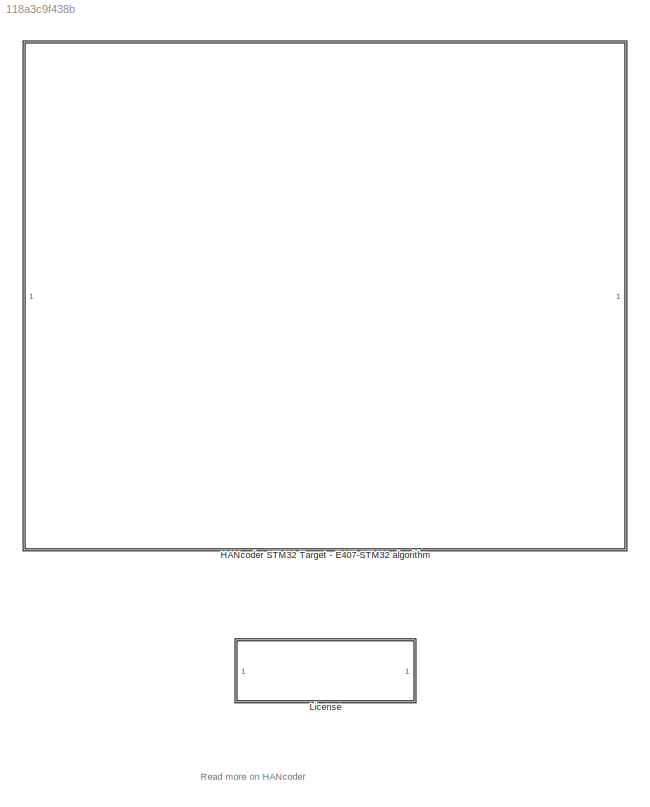
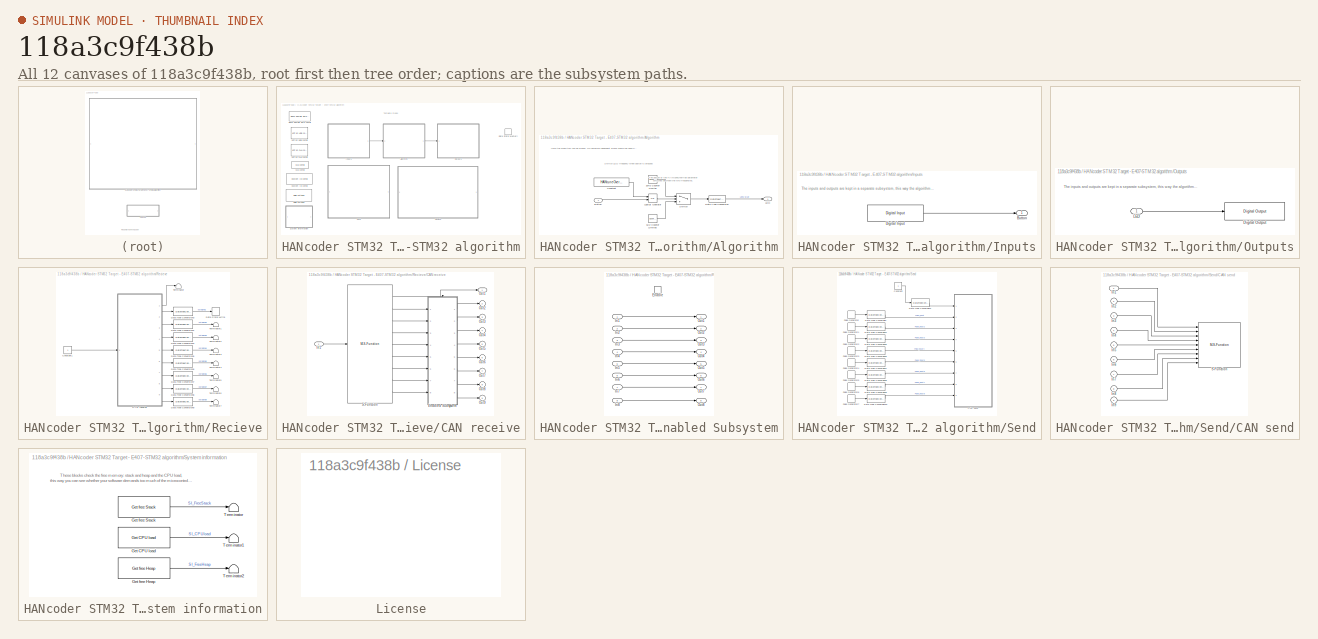
[diagram: thumbnail index - all 12 canvases of the model, root first then tree order]
MODEL slx_118a3c9f438b
KIND model
CONFIG AbsTol = auto
CONFIG EnableMultiTasking = off
CONFIG FixedStep = 0.01
CONFIG MaxStep = auto
CONFIG MinStep = auto
CONFIG PreLoadFcn = librarySetup\neval([bdroot,'_startup']) %Calling [modelName]_startup.m
CONFIG RelTol = 1e-3
CONFIG SampleTimeConstraint = Unconstrained
CONFIG Solver = FixedStepDiscrete
CONFIG SolverName = FixedStepDiscrete
CONFIG StartTime = 0.0
CONFIG StopTime = 1
BLOCK [SubSystem] HANcoder STM32 Target - E407-STM32 algorithm
  CopyFcn = HANcoderChecks('Copy');
  MoveFcn = HANcoderChecks('MoveE407');
  NameChangeFcn = HANcoderChecks('NameChangeE407');
  Ports = []
  RequestExecContextInheritance = off
BLOCK [SubSystem] HANcoder STM32 Target - E407-STM32 algorithm/Algorithm
  Ports = [1, 1]
  RequestExecContextInheritance = off
BLOCK [Reference] HANcoder STM32 Target - E407-STM32 algorithm/Algorithm/10Hz Counter Limiter  REF=simulink/Sources/Counter
Limited
  Ports = [0, 1]
  SourceBlock = simulink/Sources/Counter\nLimited
  SourceProductBaseCode = SL
  SourceProductName = Simulink
  SourceType = Counter Limited
BLOCK [Reference] HANcoder STM32 Target - E407-STM32 algorithm/Algorithm/5Hz Counter Limited  REF=simulink/Sources/Counter
Limited
  Ports = [0, 1]
  SourceBlock = simulink/Sources/Counter\nLimited
  SourceProductBaseCode = SL
  SourceProductName = Simulink
  SourceType = Counter Limited
BLOCK [Inport] HANcoder STM32 Target - E407-STM32 algorithm/Algorithm/Button
  IconDisplay = Port number
BLOCK [Constant] HANcoder STM32 Target - E407-STM32 algorithm/Algorithm/Constant
  OutDataTypeStr = boolean
  Value = HANtuneOverride
BLOCK [DataTypeConversion] HANcoder STM32 Target - E407-STM32 algorithm/Algorithm/Data Type Conversion
  OutDataTypeStr = boolean
  RndMeth = Floor
  SaturateOnIntegerOverflow = off
BLOCK [Outport] HANcoder STM32 Target - E407-STM32 algorithm/Algorithm/LED
  IconDisplay = Port number
BLOCK [Logic] HANcoder STM32 Target - E407-STM32 algorithm/Algorithm/Logical Operator
  AllPortsSameDT = off
  Operator = OR
  OutDataTypeStr = boolean
  Ports = [2, 1]
BLOCK [Switch] HANcoder STM32 Target - E407-STM32 algorithm/Algorithm/Switch
  Criteria = u2 > Threshold
  InputSameDT = off
  SaturateOnIntegerOverflow = off
BLOCK [Reference] HANcoder STM32 Target - E407-STM32 algorithm/Base Sample Time config  REF=HANcoder_STM32_Target/STM32-E407/System Config/Base Sample Time config
  Description = HANcoder Target STM32-E407 blockset version 0.5
  Ports = []
  SourceBlock = HANcoder_STM32_Target/STM32-E407/System Config/Base Sample Time config
  SourceProductName = HANcoder STM32 Target
  SourceType = Base Sample Time config
  Tag = HANcoder_TARGET_STM32_E407
  UserDataPersistent = on
BLOCK [Reference] HANcoder STM32 Target - E407-STM32 algorithm/Build settings  REF=HANcoder_STM32_Target/STM32-E407/System Config/Build settings
  Ports = []
  SourceBlock = HANcoder_STM32_Target/STM32-E407/System Config/Build settings
  SourceProductName = HANcoder STM32 Target
  SourceType = Build Settings
  Tag = HANcoder_TARGET_STM32_E407
  UserDataPersistent = on
BLOCK [Reference] HANcoder STM32 Target - E407-STM32 algorithm/CAN config  REF=HANcoder_STM32_Target/STM32-E407/System Config/CAN config
  Ports = []
  SourceBlock = HANcoder_STM32_Target/STM32-E407/System Config/CAN config
  SourceProductName = HANcoder STM32 Target
  SourceType = CAN config
  Tag = HANcoder_TARGET_STM32_E407
  UserDataPersistent = on
BLOCK [Reference] HANcoder STM32 Target - E407-STM32 algorithm/Custom ID config  REF=HANcoder_STM32_Target/STM32-E407/System Config/Custom ID config
  Ports = []
  SourceBlock = HANcoder_STM32_Target/STM32-E407/System Config/Custom ID config
  SourceProductName = HANcoder STM32 Target
  SourceType = Custom ID config
  Tag = HANcoder_TARGET_STM32_E407
  UserDataPersistent = on
BLOCK [DataStoreMemory] HANcoder STM32 Target - E407-STM32 algorithm/Data Store Memory
  DataStoreName = HANtuneOverride1
  ReadBeforeWriteMsg = warning
  ShowAdditionalParam = off
  WriteAfterReadMsg = warning
  WriteAfterWriteMsg = warning
BLOCK [SubSystem] HANcoder STM32 Target - E407-STM32 algorithm/Inputs
  Ports = [0, 1]
  RequestExecContextInheritance = off
BLOCK [Outport] HANcoder STM32 Target - E407-STM32 algorithm/Inputs/Button
  IconDisplay = Port number
BLOCK [Reference] HANcoder STM32 Target - E407-STM32 algorithm/Inputs/Digital Input  REF=HANcoder_STM32_Target/STM32-E407/Digital Inputs/Digital Input
  Ports = [0, 1]
  SourceBlock = HANcoder_STM32_Target/STM32-E407/Digital Inputs/Digital Input
  SourceProductName = HANcoder STM32 Target
  SourceType = Digital Input
  Tag = HANcoder_TARGET_STM32_E407
  UserDataPersistent = on
BLOCK [SubSystem] HANcoder STM32 Target - E407-STM32 algorithm/Outputs
  Ports = [1]
  RequestExecContextInheritance = off
BLOCK [Reference] HANcoder STM32 Target - E407-STM32 algorithm/Outputs/Digital Output  REF=HANcoder_STM32_Target/STM32-E407/Digital Outputs/Digital Output
  Ports = [1]
  SourceBlock = HANcoder_STM32_Target/STM32-E407/Digital Outputs/Digital Output
  SourceProductName = HANcoder STM32 Target
  SourceType = Digital Output
  Tag = HANcoder_TARGET_STM32_E407
  UserDataPersistent = on
BLOCK [Inport] HANcoder STM32 Target - E407-STM32 algorithm/Outputs/LED
  IconDisplay = Port number
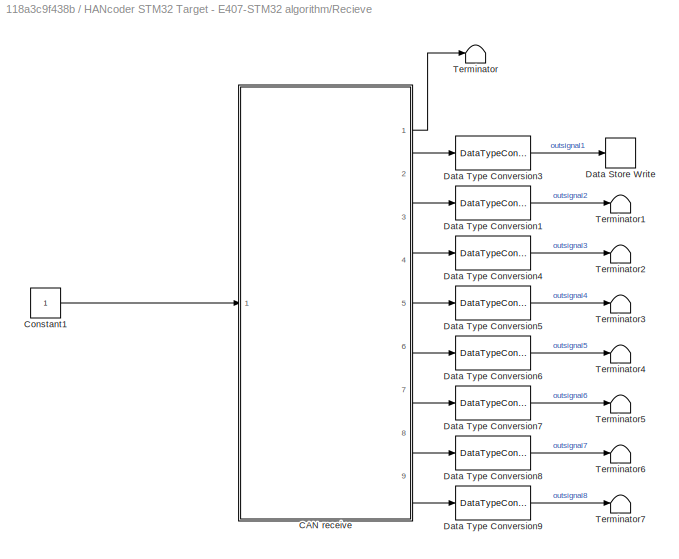
BLOCK [SubSystem] HANcoder STM32 Target - E407-STM32 algorithm/Recieve
  Commented = on
  Ports = []
  RequestExecContextInheritance = off
BLOCK [SubSystem] HANcoder STM32 Target - E407-STM32 algorithm/Recieve/CAN receive
  AncestorBlock = HANcoder_STM32_Target/STM32-E407/CAN/CAN/CAN receive
  MoveFcn = drawLogos
  Ports = [1, 9]
  RequestExecContextInheritance = off
  Tag = HANcoder_TARGET_STM32_E407
  UserDataPersistent = on
BLOCK [SubSystem] HANcoder STM32 Target - E407-STM32 algorithm/Recieve/CAN receive/Enabled Subsystem
  Ports = [8, 8, 1]
  RequestExecContextInheritance = off
  TreatAsAtomicUnit = on
BLOCK [EnablePort] HANcoder STM32 Target - E407-STM32 algorithm/Recieve/CAN receive/Enabled Subsystem/Enable
  Ports = []
BLOCK [Inport] HANcoder STM32 Target - E407-STM32 algorithm/Recieve/CAN receive/Enabled Subsystem/In1
  IconDisplay = Port number
BLOCK [Inport] HANcoder STM32 Target - E407-STM32 algorithm/Recieve/CAN receive/Enabled Subsystem/In2
  IconDisplay = Port number
  Port = 2
BLOCK [Inport] HANcoder STM32 Target - E407-STM32 algorithm/Recieve/CAN receive/Enabled Subsystem/In3
  IconDisplay = Port number
  Port = 3
BLOCK [Inport] HANcoder STM32 Target - E407-STM32 algorithm/Recieve/CAN receive/Enabled Subsystem/In4
  IconDisplay = Port number
  Port = 4
BLOCK [Inport] HANcoder STM32 Target - E407-STM32 algorithm/Recieve/CAN receive/Enabled Subsystem/In5
  IconDisplay = Port number
  Port = 5
BLOCK [Inport] HANcoder STM32 Target - E407-STM32 algorithm/Recieve/CAN receive/Enabled Subsystem/In6
  IconDisplay = Port number
  Port = 6
BLOCK [Inport] HANcoder STM32 Target - E407-STM32 algorithm/Recieve/CAN receive/Enabled Subsystem/In7
  IconDisplay = Port number
  Port = 7
BLOCK [Inport] HANcoder STM32 Target - E407-STM32 algorithm/Recieve/CAN receive/Enabled Subsystem/In8
  IconDisplay = Port number
  Port = 8
BLOCK [Outport] HANcoder STM32 Target - E407-STM32 algorithm/Recieve/CAN receive/Enabled Subsystem/Out1
  IconDisplay = Port number
BLOCK [Outport] HANcoder STM32 Target - E407-STM32 algorithm/Recieve/CAN receive/Enabled Subsystem/Out2
  IconDisplay = Port number
  Port = 2
BLOCK [Outport] HANcoder STM32 Target - E407-STM32 algorithm/Recieve/CAN receive/Enabled Subsystem/Out3
  IconDisplay = Port number
  Port = 3
BLOCK [Outport] HANcoder STM32 Target - E407-STM32 algorithm/Recieve/CAN receive/Enabled Subsystem/Out4
  IconDisplay = Port number
  Port = 4
BLOCK [Outport] HANcoder STM32 Target - E407-STM32 algorithm/Recieve/CAN receive/Enabled Subsystem/Out5
  IconDisplay = Port number
  Port = 5
BLOCK [Outport] HANcoder STM32 Target - E407-STM32 algorithm/Recieve/CAN receive/Enabled Subsystem/Out6
  IconDisplay = Port number
  Port = 6
BLOCK [Outport] HANcoder STM32 Target - E407-STM32 algorithm/Recieve/CAN receive/Enabled Subsystem/Out7
  IconDisplay = Port number
  Port = 7
BLOCK [Outport] HANcoder STM32 Target - E407-STM32 algorithm/Recieve/CAN receive/Enabled Subsystem/Out8
  IconDisplay = Port number
  Port = 8
BLOCK [Inport] HANcoder STM32 Target - E407-STM32 algorithm/Recieve/CAN receive/In1
  IconDisplay = Port number
BLOCK [Outport] HANcoder STM32 Target - E407-STM32 algorithm/Recieve/CAN receive/Out1
  IconDisplay = Port number
BLOCK [Outport] HANcoder STM32 Target - E407-STM32 algorithm/Recieve/CAN receive/Out2
  IconDisplay = Port number
  Port = 2
BLOCK [Outport] HANcoder STM32 Target - E407-STM32 algorithm/Recieve/CAN receive/Out3
  IconDisplay = Port number
  Port = 3
BLOCK [Outport] HANcoder STM32 Target - E407-STM32 algorithm/Recieve/CAN receive/Out4
  IconDisplay = Port number
  Port = 4
BLOCK [Outport] HANcoder STM32 Target - E407-STM32 algorithm/Recieve/CAN receive/Out5
  IconDisplay = Port number
  Port = 5
BLOCK [Outport] HANcoder STM32 Target - E407-STM32 algorithm/Recieve/CAN receive/Out6
  IconDisplay = Port number
  Port = 6
BLOCK [Outport] HANcoder STM32 Target - E407-STM32 algorithm/Recieve/CAN receive/Out7
  IconDisplay = Port number
  Port = 7
BLOCK [Outport] HANcoder STM32 Target - E407-STM32 algorithm/Recieve/CAN receive/Out8
  IconDisplay = Port number
  Port = 8
BLOCK [Outport] HANcoder STM32 Target - E407-STM32 algorithm/Recieve/CAN receive/Out9
  IconDisplay = Port number
  Port = 9
BLOCK [M-S-Function] HANcoder STM32 Target - E407-STM32 algorithm/Recieve/CAN receive/S-Function
  FunctionName = sfcn_can_receive
  Parameters = tsamp, canBus, outputNumber, dataType, byteOrder
  Ports = [1, 9]
BLOCK [Constant] HANcoder STM32 Target - E407-STM32 algorithm/Recieve/Constant1
  OutDataTypeStr = uint32
BLOCK [DataStoreWrite] HANcoder STM32 Target - E407-STM32 algorithm/Recieve/Data Store Write
  DataStoreName = HANtuneOverride1
  Ports = [1]
BLOCK [DataTypeConversion] HANcoder STM32 Target - E407-STM32 algorithm/Recieve/Data Type Conversion1
  OutDataTypeStr = double
  RndMeth = Floor
  SaturateOnIntegerOverflow = off
BLOCK [DataTypeConversion] HANcoder STM32 Target - E407-STM32 algorithm/Recieve/Data Type Conversion3
  OutDataTypeStr = double
  RndMeth = Floor
  SaturateOnIntegerOverflow = off
BLOCK [DataTypeConversion] HANcoder STM32 Target - E407-STM32 algorithm/Recieve/Data Type Conversion4
  OutDataTypeStr = double
  RndMeth = Floor
  SaturateOnIntegerOverflow = off
BLOCK [DataTypeConversion] HANcoder STM32 Target - E407-STM32 algorithm/Recieve/Data Type Conversion5
  OutDataTypeStr = double
  RndMeth = Floor
  SaturateOnIntegerOverflow = off
BLOCK [DataTypeConversion] HANcoder STM32 Target - E407-STM32 algorithm/Recieve/Data Type Conversion6
  OutDataTypeStr = double
  RndMeth = Floor
  SaturateOnIntegerOverflow = off
BLOCK [DataTypeConversion] HANcoder STM32 Target - E407-STM32 algorithm/Recieve/Data Type Conversion7
  OutDataTypeStr = double
  RndMeth = Floor
  SaturateOnIntegerOverflow = off
BLOCK [DataTypeConversion] HANcoder STM32 Target - E407-STM32 algorithm/Recieve/Data Type Conversion8
  OutDataTypeStr = double
  RndMeth = Floor
  SaturateOnIntegerOverflow = off
BLOCK [DataTypeConversion] HANcoder STM32 Target - E407-STM32 algorithm/Recieve/Data Type Conversion9
  OutDataTypeStr = double
  RndMeth = Floor
  SaturateOnIntegerOverflow = off
BLOCK [Terminator] HANcoder STM32 Target - E407-STM32 algorithm/Recieve/Terminator
BLOCK [Terminator] HANcoder STM32 Target - E407-STM32 algorithm/Recieve/Terminator1
BLOCK [Terminator] HANcoder STM32 Target - E407-STM32 algorithm/Recieve/Terminator2
BLOCK [Terminator] HANcoder STM32 Target - E407-STM32 algorithm/Recieve/Terminator3
BLOCK [Terminator] HANcoder STM32 Target - E407-STM32 algorithm/Recieve/Terminator4
BLOCK [Terminator] HANcoder STM32 Target - E407-STM32 algorithm/Recieve/Terminator5
BLOCK [Terminator] HANcoder STM32 Target - E407-STM32 algorithm/Recieve/Terminator6
BLOCK [Terminator] HANcoder STM32 Target - E407-STM32 algorithm/Recieve/Terminator7
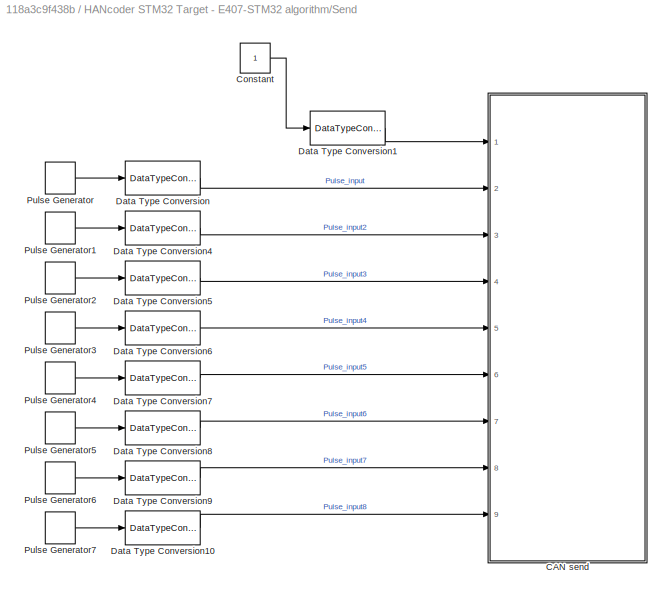
BLOCK [SubSystem] HANcoder STM32 Target - E407-STM32 algorithm/Send
  Commented = on
  Ports = []
  RequestExecContextInheritance = off
BLOCK [SubSystem] HANcoder STM32 Target - E407-STM32 algorithm/Send/CAN send
  AncestorBlock = HANcoder_STM32_Target/STM32-E407/CAN/CAN/CAN send
  MoveFcn = drawLogos
  Ports = [9]
  RequestExecContextInheritance = off
  Tag = HANcoder_TARGET_STM32_E407
  UserDataPersistent = on
BLOCK [Inport] HANcoder STM32 Target - E407-STM32 algorithm/Send/CAN send/In1
  IconDisplay = Port number
BLOCK [Inport] HANcoder STM32 Target - E407-STM32 algorithm/Send/CAN send/In2
  IconDisplay = Port number
  Port = 2
BLOCK [Inport] HANcoder STM32 Target - E407-STM32 algorithm/Send/CAN send/In3
  IconDisplay = Port number
  Port = 3
BLOCK [Inport] HANcoder STM32 Target - E407-STM32 algorithm/Send/CAN send/In4
  IconDisplay = Port number
  Port = 4
BLOCK [Inport] HANcoder STM32 Target - E407-STM32 algorithm/Send/CAN send/In5
  IconDisplay = Port number
  Port = 5
BLOCK [Inport] HANcoder STM32 Target - E407-STM32 algorithm/Send/CAN send/In6
  IconDisplay = Port number
  Port = 6
BLOCK [Inport] HANcoder STM32 Target - E407-STM32 algorithm/Send/CAN send/In7
  IconDisplay = Port number
  Port = 7
BLOCK [Inport] HANcoder STM32 Target - E407-STM32 algorithm/Send/CAN send/In8
  IconDisplay = Port number
  Port = 8
BLOCK [Inport] HANcoder STM32 Target - E407-STM32 algorithm/Send/CAN send/In9
  IconDisplay = Port number
  Port = 9
BLOCK [M-S-Function] HANcoder STM32 Target - E407-STM32 algorithm/Send/CAN send/S-Function
  FunctionName = sfcn_can_send
  Parameters = tsamp, canBus, frameType, inputNumber, dataType, byteOrder
  Ports = [9]
BLOCK [Constant] HANcoder STM32 Target - E407-STM32 algorithm/Send/Constant
BLOCK [DataTypeConversion] HANcoder STM32 Target - E407-STM32 algorithm/Send/Data Type Conversion
  OutDataTypeStr = uint8
  RndMeth = Floor
  SaturateOnIntegerOverflow = off
BLOCK [DataTypeConversion] HANcoder STM32 Target - E407-STM32 algorithm/Send/Data Type Conversion1
  OutDataTypeStr = uint32
  RndMeth = Floor
  SaturateOnIntegerOverflow = off
BLOCK [DataTypeConversion] HANcoder STM32 Target - E407-STM32 algorithm/Send/Data Type Conversion10
  OutDataTypeStr = uint8
  RndMeth = Floor
  SaturateOnIntegerOverflow = off
BLOCK [DataTypeConversion] HANcoder STM32 Target - E407-STM32 algorithm/Send/Data Type Conversion4
  OutDataTypeStr = uint8
  RndMeth = Floor
  SaturateOnIntegerOverflow = off
BLOCK [DataTypeConversion] HANcoder STM32 Target - E407-STM32 algorithm/Send/Data Type Conversion5
  OutDataTypeStr = uint8
  RndMeth = Floor
  SaturateOnIntegerOverflow = off
BLOCK [DataTypeConversion] HANcoder STM32 Target - E407-STM32 algorithm/Send/Data Type Conversion6
  OutDataTypeStr = uint8
  RndMeth = Floor
  SaturateOnIntegerOverflow = off
BLOCK [DataTypeConversion] HANcoder STM32 Target - E407-STM32 algorithm/Send/Data Type Conversion7
  OutDataTypeStr = uint8
  RndMeth = Floor
  SaturateOnIntegerOverflow = off
BLOCK [DataTypeConversion] HANcoder STM32 Target - E407-STM32 algorithm/Send/Data Type Conversion8
  OutDataTypeStr = uint8
  RndMeth = Floor
  SaturateOnIntegerOverflow = off
BLOCK [DataTypeConversion] HANcoder STM32 Target - E407-STM32 algorithm/Send/Data Type Conversion9
  OutDataTypeStr = uint8
  RndMeth = Floor
  SaturateOnIntegerOverflow = off
BLOCK [DiscretePulseGenerator] HANcoder STM32 Target - E407-STM32 algorithm/Send/Pulse Generator
  Period = 10
  Ports = [0, 1]
  PulseType = Time based
  PulseWidth = 5
BLOCK [DiscretePulseGenerator] HANcoder STM32 Target - E407-STM32 algorithm/Send/Pulse Generator1
  Period = 12
  Ports = [0, 1]
  PulseType = Time based
  PulseWidth = 5
BLOCK [DiscretePulseGenerator] HANcoder STM32 Target - E407-STM32 algorithm/Send/Pulse Generator2
  Period = 14
  Ports = [0, 1]
  PulseType = Time based
  PulseWidth = 5
BLOCK [DiscretePulseGenerator] HANcoder STM32 Target - E407-STM32 algorithm/Send/Pulse Generator3
  Period = 16
  Ports = [0, 1]
  PulseType = Time based
  PulseWidth = 5
BLOCK [DiscretePulseGenerator] HANcoder STM32 Target - E407-STM32 algorithm/Send/Pulse Generator4
  Period = 18
  Ports = [0, 1]
  PulseType = Time based
  PulseWidth = 5
BLOCK [DiscretePulseGenerator] HANcoder STM32 Target - E407-STM32 algorithm/Send/Pulse Generator5
  Period = 20
  Ports = [0, 1]
  PulseType = Time based
  PulseWidth = 5
BLOCK [DiscretePulseGenerator] HANcoder STM32 Target - E407-STM32 algorithm/Send/Pulse Generator6
  Period = 22
  Ports = [0, 1]
  PulseType = Time based
  PulseWidth = 5
BLOCK [DiscretePulseGenerator] HANcoder STM32 Target - E407-STM32 algorithm/Send/Pulse Generator7
  Ports = [0, 1]
  PulseType = Time based
  PulseWidth = 50
BLOCK [SubSystem] HANcoder STM32 Target - E407-STM32 algorithm/System information
  Ports = []
  RequestExecContextInheritance = off
BLOCK [Reference] HANcoder STM32 Target - E407-STM32 algorithm/System information/Get CPU load  REF=HANcoder_STM32_Target/STM32-E407/System Management/Get CPU load
  Ports = [0, 1]
  SourceBlock = HANcoder_STM32_Target/STM32-E407/System Management/Get CPU load
  SourceProductName = HANcoder STM32 Target
  SourceType = Get CPU load
  Tag = HANcoder_TARGET_STM32_E407
  UserDataPersistent = on
BLOCK [Reference] HANcoder STM32 Target - E407-STM32 algorithm/System information/Get free Heap  REF=HANcoder_STM32_Target/STM32-E407/System Management/Get free Heap
  Ports = [0, 1]
  SourceBlock = HANcoder_STM32_Target/STM32-E407/System Management/Get free Heap
  SourceProductName = HANcoder STM32 Target
  SourceType = Get free Heap
  Tag = HANcoder_TARGET_STM32_E407
  UserDataPersistent = on
BLOCK [Reference] HANcoder STM32 Target - E407-STM32 algorithm/System information/Get free Stack  REF=HANcoder_STM32_Target/STM32-E407/System Management/Get free Stack
  Ports = [0, 1]
  SourceBlock = HANcoder_STM32_Target/STM32-E407/System Management/Get free Stack
  SourceProductName = HANcoder STM32 Target
  SourceType = Get free Stacl
  Tag = HANcoder_TARGET_STM32_E407
  UserDataPersistent = on
BLOCK [Terminator] HANcoder STM32 Target - E407-STM32 algorithm/System information/Terminator
BLOCK [Terminator] HANcoder STM32 Target - E407-STM32 algorithm/System information/Terminator1
BLOCK [Terminator] HANcoder STM32 Target - E407-STM32 algorithm/System information/Terminator2
BLOCK [Reference] HANcoder STM32 Target - E407-STM32 algorithm/XCP on CAN config  REF=HANcoder_STM32_Target/STM32-E407/System Config/XCP on CAN config
  Ports = []
  SourceBlock = HANcoder_STM32_Target/STM32-E407/System Config/XCP on CAN config
  SourceProductName = HANcoder STM32 Target
  SourceType = XCP on CAN config
  Tag = HANcoder_TARGET_STM32_E407
  UserDataPersistent = on
BLOCK [Reference] HANcoder STM32 Target - E407-STM32 algorithm/XCP on USB config  REF=HANcoder_STM32_Target/STM32-E407/System Config/XCP on USB config
  Ports = []
  SourceBlock = HANcoder_STM32_Target/STM32-E407/System Config/XCP on USB config
  SourceProductName = HANcoder STM32 Target
  SourceType = XCP on USB config
  Tag = HANcoder_TARGET_STM32_E407
  UserDataPersistent = on
BLOCK [SubSystem] License
  MoveFcn = HANcoderChecks('MoveLicenseBlock');
  NameChangeFcn = HANcoderChecks('NameChangeLicenseBlock');
  OpenFcn = winopen('License.pdf')
  Ports = []
  RequestExecContextInheritance = off
  ShowPortLabels = none
ANNOTATION (root): Read more on HANcoder
ANNOTATION HANcoder STM32 Target - E407-STM32 algorithm: Template model
ANNOTATION HANcoder STM32 Target - E407-STM32 algorithm/Algorithm: Here the algorithm can be placed. No hardware dependent blocks should be used here.
ANNOTATION HANcoder STM32 Target - E407-STM32 algorithm/Algorithm: Switch LED frequency when button is pressed
ANNOTATION HANcoder STM32 Target - E407-STM32 algorithm/Algorithm: The button or the HANtuneOverride parameter switches between the two frequencies.
ANNOTATION HANcoder STM32 Target - E407-STM32 algorithm/Inputs: The inputs and outputs are kept in a separate subsystem, this way the algorithm can easily be transferred to different hardware
ANNOTATION HANcoder STM32 Target - E407-STM32 algorithm/Outputs: The inputs and outputs are kept in a separate subsystem, this way the algorithm can easily be transferred to different hardware
ANNOTATION HANcoder STM32 Target - E407-STM32 algorithm/System information: These blocks check the free memory: stack and heap and the CPU load, this way you can see whether your software demands too much of the microcontroller
LINE HANcoder STM32 Target - E407-STM32 algorithm/Algorithm/10Hz Counter Limiter:1 -> HANcoder STM32 Target - E407-STM32 algorithm/Algorithm/Switch:1
LINE HANcoder STM32 Target - E407-STM32 algorithm/Algorithm/5Hz Counter Limited:1 -> HANcoder STM32 Target - E407-STM32 algorithm/Algorithm/Switch:3
LINE HANcoder STM32 Target - E407-STM32 algorithm/Algorithm/Button:1 -> HANcoder STM32 Target - E407-STM32 algorithm/Algorithm/Logical Operator:2
LINE HANcoder STM32 Target - E407-STM32 algorithm/Algorithm/Constant:1 -> HANcoder STM32 Target - E407-STM32 algorithm/Algorithm/Logical Operator:1
LINE HANcoder STM32 Target - E407-STM32 algorithm/Algorithm/Data Type Conversion:1 -> HANcoder STM32 Target - E407-STM32 algorithm/Algorithm/LED:1
LINE HANcoder STM32 Target - E407-STM32 algorithm/Algorithm/Logical Operator:1 -> HANcoder STM32 Target - E407-STM32 algorithm/Algorithm/Switch:2
LINE HANcoder STM32 Target - E407-STM32 algorithm/Algorithm/Switch:1 -> HANcoder STM32 Target - E407-STM32 algorithm/Algorithm/Data Type Conversion:1
LINE HANcoder STM32 Target - E407-STM32 algorithm/Algorithm:1 -> HANcoder STM32 Target - E407-STM32 algorithm/Outputs:1
LINE HANcoder STM32 Target - E407-STM32 algorithm/Inputs/Digital Input:1 -> HANcoder STM32 Target - E407-STM32 algorithm/Inputs/Button:1
LINE HANcoder STM32 Target - E407-STM32 algorithm/Inputs:1 -> HANcoder STM32 Target - E407-STM32 algorithm/Algorithm:1
LINE HANcoder STM32 Target - E407-STM32 algorithm/Outputs/LED:1 -> HANcoder STM32 Target - E407-STM32 algorithm/Outputs/Digital Output:1
LINE HANcoder STM32 Target - E407-STM32 algorithm/Recieve/CAN receive:1 -> HANcoder STM32 Target - E407-STM32 algorithm/Recieve/Terminator:1
LINE HANcoder STM32 Target - E407-STM32 algorithm/Recieve/CAN receive:2 -> HANcoder STM32 Target - E407-STM32 algorithm/Recieve/Data Type Conversion3:1
LINE HANcoder STM32 Target - E407-STM32 algorithm/Recieve/CAN receive:3 -> HANcoder STM32 Target - E407-STM32 algorithm/Recieve/Data Type Conversion1:1
LINE HANcoder STM32 Target - E407-STM32 algorithm/Recieve/CAN receive:4 -> HANcoder STM32 Target - E407-STM32 algorithm/Recieve/Data Type Conversion4:1
LINE HANcoder STM32 Target - E407-STM32 algorithm/Recieve/CAN receive:5 -> HANcoder STM32 Target - E407-STM32 algorithm/Recieve/Data Type Conversion5:1
LINE HANcoder STM32 Target - E407-STM32 algorithm/Recieve/CAN receive:6 -> HANcoder STM32 Target - E407-STM32 algorithm/Recieve/Data Type Conversion6:1
LINE HANcoder STM32 Target - E407-STM32 algorithm/Recieve/CAN receive:7 -> HANcoder STM32 Target - E407-STM32 algorithm/Recieve/Data Type Conversion7:1
LINE HANcoder STM32 Target - E407-STM32 algorithm/Recieve/CAN receive:8 -> HANcoder STM32 Target - E407-STM32 algorithm/Recieve/Data Type Conversion8:1
LINE HANcoder STM32 Target - E407-STM32 algorithm/Recieve/CAN receive:9 -> HANcoder STM32 Target - E407-STM32 algorithm/Recieve/Data Type Conversion9:1
LINE HANcoder STM32 Target - E407-STM32 algorithm/Recieve/Constant1:1 -> HANcoder STM32 Target - E407-STM32 algorithm/Recieve/CAN receive:1
LINE HANcoder STM32 Target - E407-STM32 algorithm/Recieve/Data Type Conversion1:1 -> HANcoder STM32 Target - E407-STM32 algorithm/Recieve/Terminator1:1
LINE HANcoder STM32 Target - E407-STM32 algorithm/Recieve/Data Type Conversion3:1 -> HANcoder STM32 Target - E407-STM32 algorithm/Recieve/Data Store Write:1
LINE HANcoder STM32 Target - E407-STM32 algorithm/Recieve/Data Type Conversion4:1 -> HANcoder STM32 Target - E407-STM32 algorithm/Recieve/Terminator2:1
LINE HANcoder STM32 Target - E407-STM32 algorithm/Recieve/Data Type Conversion5:1 -> HANcoder STM32 Target - E407-STM32 algorithm/Recieve/Terminator3:1
LINE HANcoder STM32 Target - E407-STM32 algorithm/Recieve/Data Type Conversion6:1 -> HANcoder STM32 Target - E407-STM32 algorithm/Recieve/Terminator4:1
LINE HANcoder STM32 Target - E407-STM32 algorithm/Recieve/Data Type Conversion7:1 -> HANcoder STM32 Target - E407-STM32 algorithm/Recieve/Terminator5:1
LINE HANcoder STM32 Target - E407-STM32 algorithm/Recieve/Data Type Conversion8:1 -> HANcoder STM32 Target - E407-STM32 algorithm/Recieve/Terminator6:1
LINE HANcoder STM32 Target - E407-STM32 algorithm/Recieve/Data Type Conversion9:1 -> HANcoder STM32 Target - E407-STM32 algorithm/Recieve/Terminator7:1
LINE HANcoder STM32 Target - E407-STM32 algorithm/Send/Constant:1 -> HANcoder STM32 Target - E407-STM32 algorithm/Send/Data Type Conversion1:1
LINE HANcoder STM32 Target - E407-STM32 algorithm/Send/Data Type Conversion10:1 -> HANcoder STM32 Target - E407-STM32 algorithm/Send/CAN send:9
LINE HANcoder STM32 Target - E407-STM32 algorithm/Send/Data Type Conversion1:1 -> HANcoder STM32 Target - E407-STM32 algorithm/Send/CAN send:1
LINE HANcoder STM32 Target - E407-STM32 algorithm/Send/Data Type Conversion4:1 -> HANcoder STM32 Target - E407-STM32 algorithm/Send/CAN send:3
LINE HANcoder STM32 Target - E407-STM32 algorithm/Send/Data Type Conversion5:1 -> HANcoder STM32 Target - E407-STM32 algorithm/Send/CAN send:4
LINE HANcoder STM32 Target - E407-STM32 algorithm/Send/Data Type Conversion6:1 -> HANcoder STM32 Target - E407-STM32 algorithm/Send/CAN send:5
LINE HANcoder STM32 Target - E407-STM32 algorithm/Send/Data Type Conversion7:1 -> HANcoder STM32 Target - E407-STM32 algorithm/Send/CAN send:6
LINE HANcoder STM32 Target - E407-STM32 algorithm/Send/Data Type Conversion8:1 -> HANcoder STM32 Target - E407-STM32 algorithm/Send/CAN send:7
LINE HANcoder STM32 Target - E407-STM32 algorithm/Send/Data Type Conversion9:1 -> HANcoder STM32 Target - E407-STM32 algorithm/Send/CAN send:8
LINE HANcoder STM32 Target - E407-STM32 algorithm/Send/Data Type Conversion:1 -> HANcoder STM32 Target - E407-STM32 algorithm/Send/CAN send:2
LINE HANcoder STM32 Target - E407-STM32 algorithm/Send/Pulse Generator1:1 -> HANcoder STM32 Target - E407-STM32 algorithm/Send/Data Type Conversion4:1
LINE HANcoder STM32 Target - E407-STM32 algorithm/Send/Pulse Generator2:1 -> HANcoder STM32 Target - E407-STM32 algorithm/Send/Data Type Conversion5:1
LINE HANcoder STM32 Target - E407-STM32 algorithm/Send/Pulse Generator3:1 -> HANcoder STM32 Target - E407-STM32 algorithm/Send/Data Type Conversion6:1
LINE HANcoder STM32 Target - E407-STM32 algorithm/Send/Pulse Generator4:1 -> HANcoder STM32 Target - E407-STM32 algorithm/Send/Data Type Conversion7:1
LINE HANcoder STM32 Target - E407-STM32 algorithm/Send/Pulse Generator5:1 -> HANcoder STM32 Target - E407-STM32 algorithm/Send/Data Type Conversion8:1
LINE HANcoder STM32 Target - E407-STM32 algorithm/Send/Pulse Generator6:1 -> HANcoder STM32 Target - E407-STM32 algorithm/Send/Data Type Conversion9:1
LINE HANcoder STM32 Target - E407-STM32 algorithm/Send/Pulse Generator7:1 -> HANcoder STM32 Target - E407-STM32 algorithm/Send/Data Type Conversion10:1
LINE HANcoder STM32 Target - E407-STM32 algorithm/Send/Pulse Generator:1 -> HANcoder STM32 Target - E407-STM32 algorithm/Send/Data Type Conversion:1
LINE HANcoder STM32 Target - E407-STM32 algorithm/System information/Get CPU load:1 -> HANcoder STM32 Target - E407-STM32 algorithm/System information/Terminator1:1
LINE HANcoder STM32 Target - E407-STM32 algorithm/System information/Get free Heap:1 -> HANcoder STM32 Target - E407-STM32 algorithm/System information/Terminator2:1
LINE HANcoder STM32 Target - E407-STM32 algorithm/System information/Get free Stack:1 -> HANcoder STM32 Target - E407-STM32 algorithm/System information/Terminator:1
